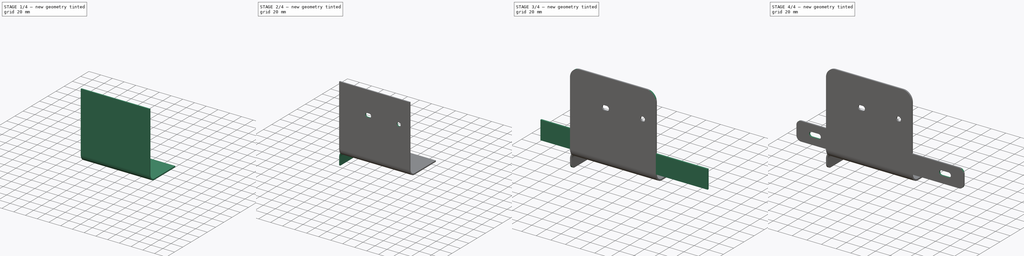
[diagram: build sequence overview — one tinted view per stage of 4, left to right]
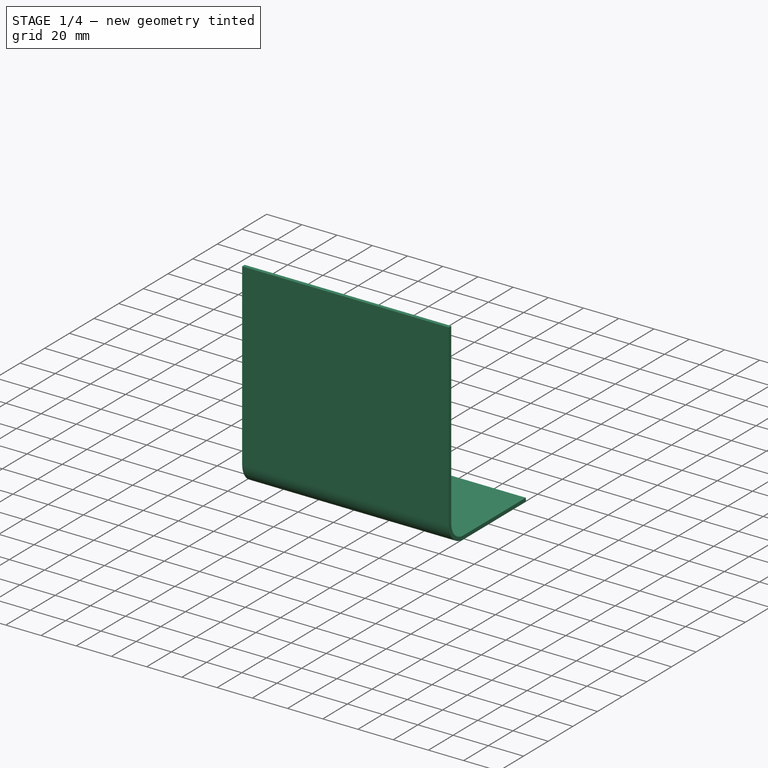
[diagram: stage 1 of 4 — iso view after this stage's code; geometry added in this stage tinted green]
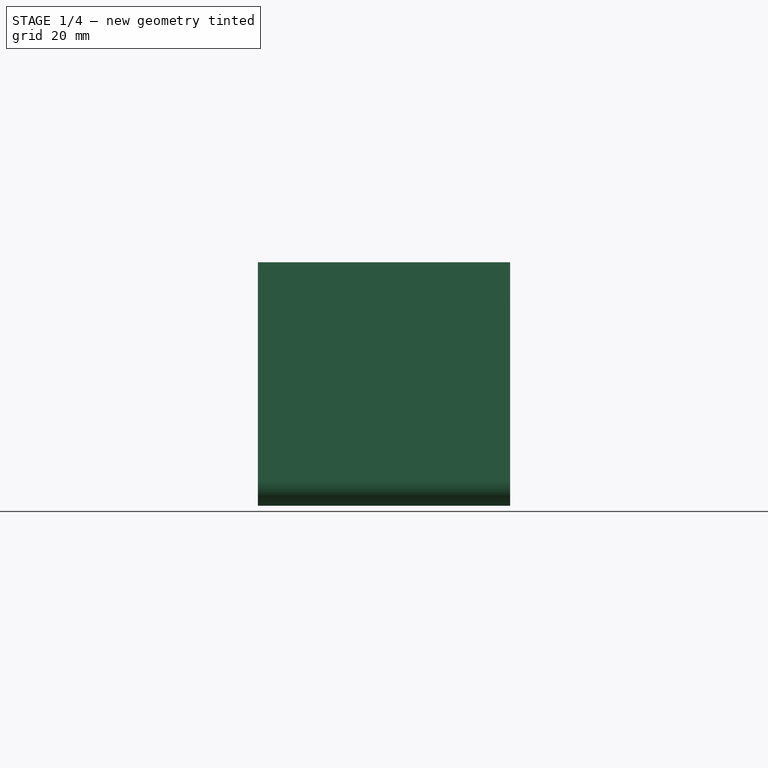
[diagram: stage 1 of 4 — front view after this stage's code; geometry added in this stage tinted green]
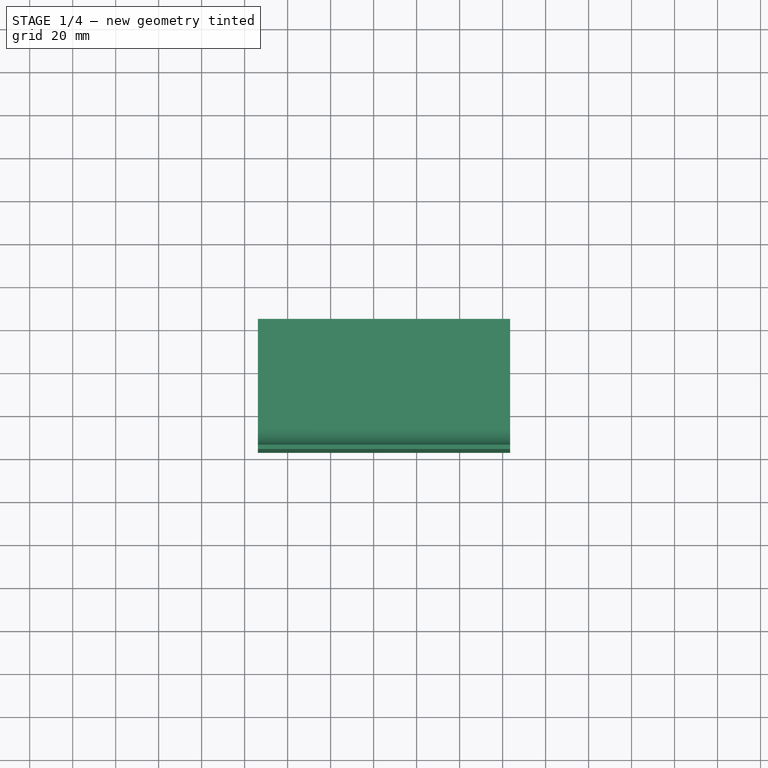
[diagram: stage 1 of 4 — top view after this stage's code; geometry added in this stage tinted green]
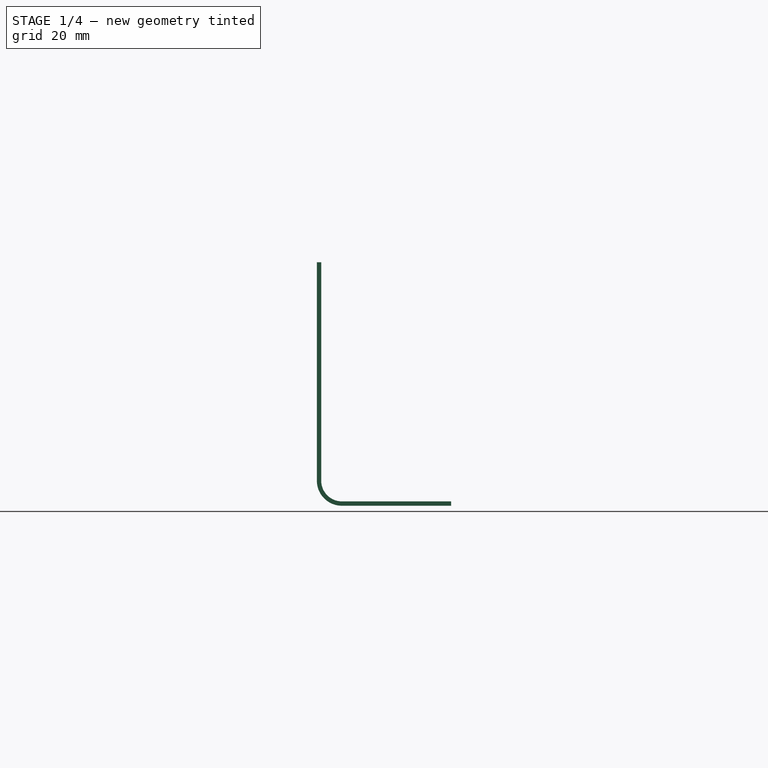
[diagram: stage 1 of 4 — right view after this stage's code; geometry added in this stage tinted green]
FCSTD DOCUMENT  (FreeCAD 1.0R39109 (Git))
Label: rear-light-bracket
License: All rights reserved
LicenseURL: https://en.wikipedia.org/wiki/All_rights_reserved
objects: Sketcher::SketchObject×5, PartDesign::Pocket×3, PartDesign::Fillet×3, PartDesign::Pad×2, PartDesign::FeaturePython×2, Spreadsheet::Sheet×1, PartDesign::Body×1
note: 39 computed .brp shape members not serialized (recipe doc carries the construction recipe); baked Part::Feature solids carry a one-line shape summary decoded from their .brp

FEATURE [Sketcher::SketchObject] Sketch
  ArcFitTolerance = 1e-06
  AttachmentSupport = -> [XY_Plane]
  FullyConstrained = false
  MakeInternals = false
  MapMode = 5
  expr: Constraints[10] = 5 in / 2
  expr: Constraints[9] = 5 in - <<Spreadsheet>>.bend_radius
  sketch-geometry (4):
    g0: LineSegment StartX=-53.848 StartY=25.4 StartZ=0 EndX=-53.848 EndY=-25.4 EndZ=0
    g1: LineSegment StartX=-53.848 StartY=-25.4 StartZ=0 EndX=63.5 EndY=-25.4 EndZ=0
    g2: LineSegment StartX=63.5 StartY=-25.4 StartZ=0 EndX=63.5 EndY=25.4 EndZ=0
    g3: LineSegment StartX=63.5 StartY=25.4 StartZ=0 EndX=-53.848 EndY=25.4 EndZ=0
  constraints (11):
    c: Coincident(g0,g1)
    c: Coincident(g1,g2)
    c: Coincident(g2,g3)
    c: Coincident(g3,g0)
    c: Vertical(g0)
    c: Vertical(g2)
    c: Horizontal(g1)
    c: Horizontal(g3)
    c: DistanceY(g2,g2) = 50.8
    c: DistanceX(g1,g1) = 117.348
    c: DistanceX(g-1,g2) = 63.5
FEATURE [PartDesign::Pad] Pad
  Direction = (0,0,1)
  Length = 2.032
  Length2 = 10
  Profile = -> Sketch
  ReferenceAxis = -> Sketch [N_Axis]
  Refine = true
  Suppressed = false
  Type = 0
FEATURE [PartDesign::FeaturePython] Bend  # WARN: FeaturePython — macro-defined, semantics opaque (R4)
  AutoMiter = true
  BaseFeature = -> Pad
  BendType = 0
  LengthList = [101.6]
  LengthSpec = 0
  NonperforationMaxLength = 5
  Perforate = false
  PerforationAngle = 0
  PerforationInitialLength = 5
  PerforationMaxLength = 5
  ReliefFactor = 0.7
  Suppressed = false
  UseReliefFactor = false
  angle = 90
  baseObject = -> Pad [Face2]
  bendAList = [90]
  extend1 = 0
  extend2 = 0
  gap1 = 0
  gap2 = 0
  invert = false
  kfactor = 0.48
  length = 101.6
  maxExtendDist = 5
  minGap = 0.2
  minReliefGap = 1
  miterangle1 = 0
  miterangle2 = 0
  offset = 0
  radius = 9.652
  reliefType = 0
  reliefd = 1
  reliefw = 0.8
  sketchflip = false
  sketchinvert = false
  unfold = false
  expr: kfactor = <<Spreadsheet>>.k_factor
  expr: radius = <<Spreadsheet>>.bend_radius
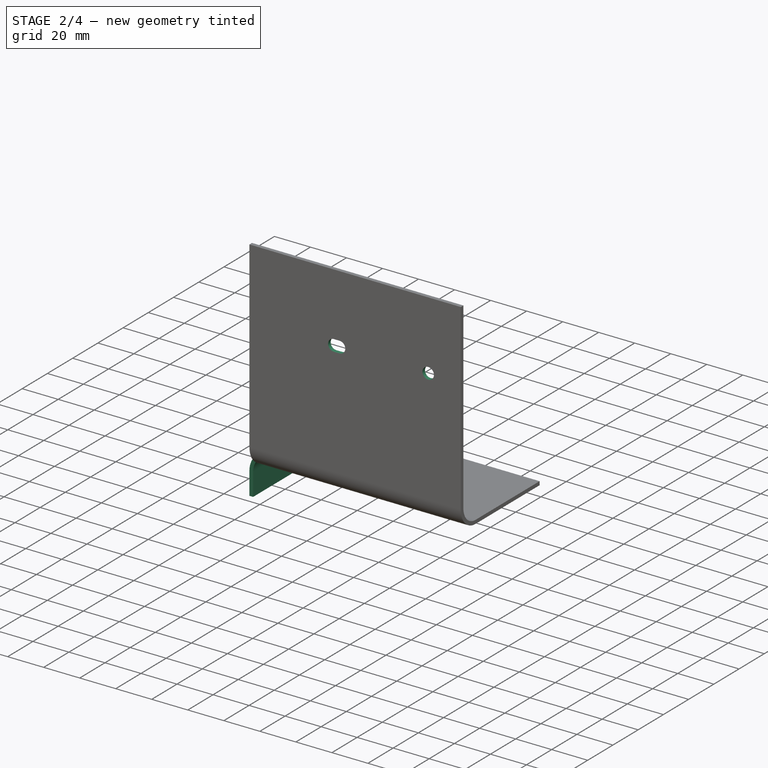
[diagram: stage 2 of 4 — iso view after this stage's code; geometry added in this stage tinted green]
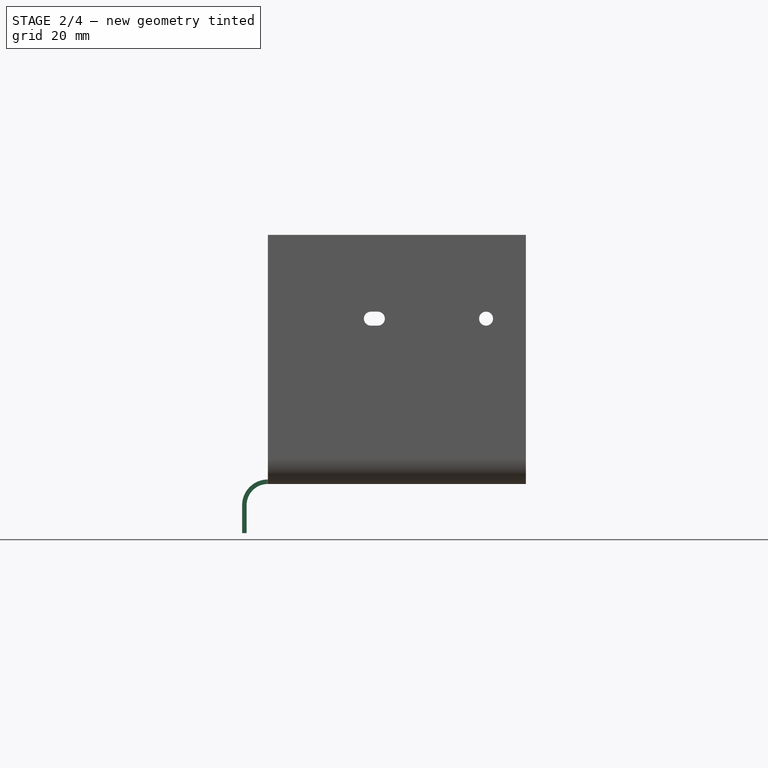
[diagram: stage 2 of 4 — front view after this stage's code; geometry added in this stage tinted green]
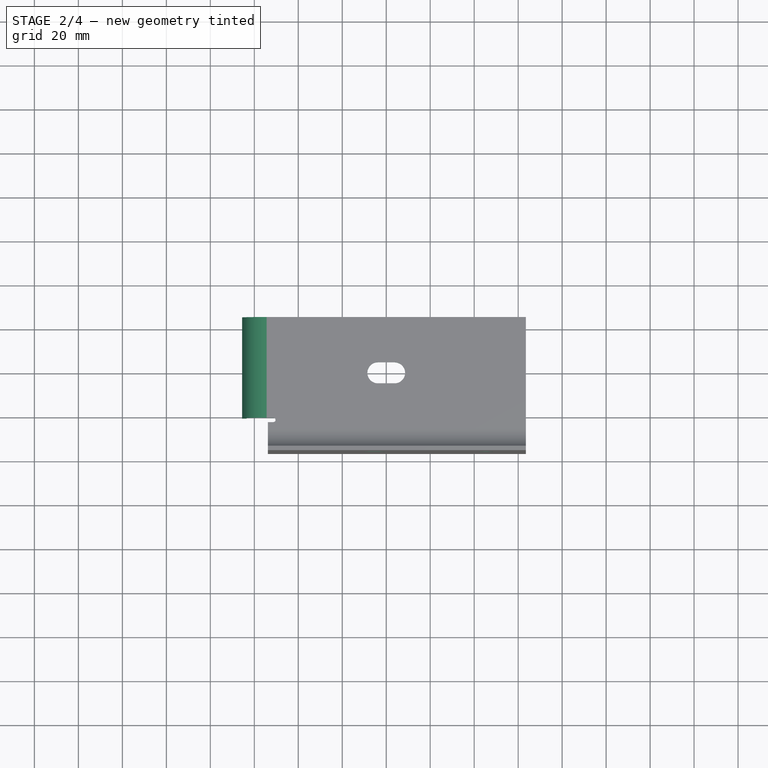
[diagram: stage 2 of 4 — top view after this stage's code; geometry added in this stage tinted green]
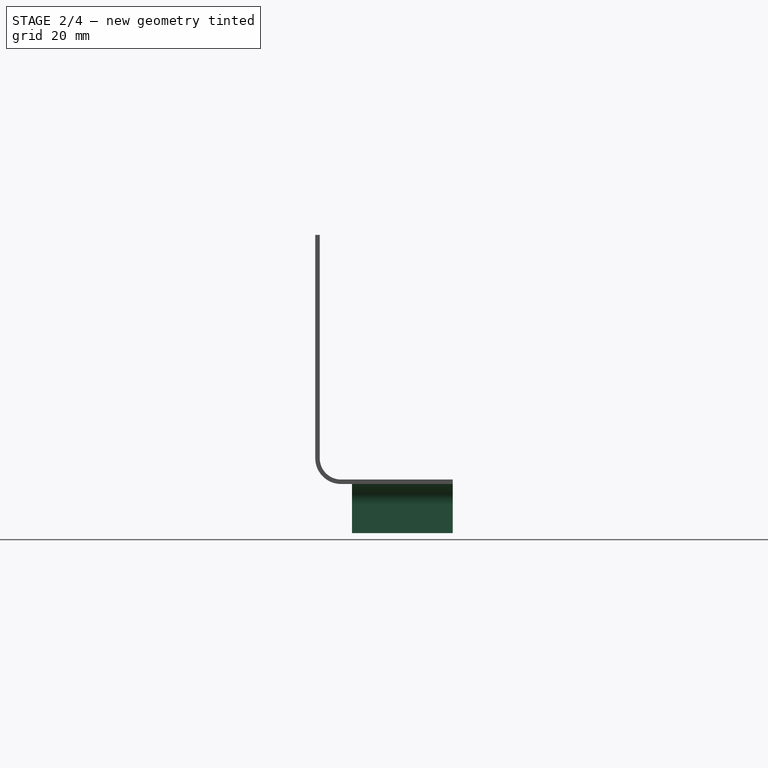
[diagram: stage 2 of 4 — right view after this stage's code; geometry added in this stage tinted green]
FEATURE [PartDesign::FeaturePython] Bend001  # WARN: FeaturePython — macro-defined, semantics opaque (R4)
  AutoMiter = true
  BaseFeature = -> Bend
  BendType = 0
  LengthList = [12.7]
  LengthSpec = 0
  NonperforationMaxLength = 5
  Perforate = false
  PerforationAngle = 0
  PerforationInitialLength = 5
  PerforationMaxLength = 5
  ReliefFactor = 0.7
  Suppressed = false
  UseReliefFactor = false
  angle = 90
  baseObject = -> Bend [Face1]
  bendAList = [90]
  extend1 = 0
  extend2 = 0
  gap1 = 0
  gap2 = 5
  invert = true
  kfactor = 0.48
  length = 12.7
  maxExtendDist = 5
  minGap = 0.2
  minReliefGap = 1
  miterangle1 = 0
  miterangle2 = 0
  offset = 0
  radius = 9.652
  reliefType = 1
  reliefd = 3.5052
  reliefw = 2
  sketchflip = false
  sketchinvert = false
  unfold = false
  expr: kfactor = <<Spreadsheet>>.k_factor
  expr: radius = <<Spreadsheet>>.bend_radius
  expr: reliefd = <<Spreadsheet>>.relief_depth
  expr: reliefw = 2
FEATURE [Sketcher::SketchObject] Sketch001
  ArcFitTolerance = 1e-06
  AttachmentSupport = -> [Bend001]
  ExternalGeometry = -> [Bend001]
  FullyConstrained = true
  MakeInternals = false
  MapMode = 5
  Placement = pos=(0,-37.084,-4.1e-15) rot=(1,0,0;1.5708rad)
  sketch-geometry (7):
    g0: ArcOfCircle CenterX=-6.9875 CenterY=75.184 CenterZ=0 NormalX=0 NormalY=0 NormalZ=1 AngleXU=0 Radius=3.175 StartAngle=1.5708 EndAngle=4.71239
    g1: ArcOfCircle CenterX=-3.8125 CenterY=75.184 CenterZ=0 NormalX=0 NormalY=0 NormalZ=1 AngleXU=0 Radius=3.175 StartAngle=4.71239 EndAngle=7.85398
    g2: LineSegment StartX=-6.9875 StartY=78.359 StartZ=0 EndX=-3.8125 EndY=78.359 EndZ=0
    g3: LineSegment StartX=-6.9875 StartY=72.009 StartZ=0 EndX=-3.8125 EndY=72.009 EndZ=0
    g4: GeomPoint X=-5.4 Y=75.184 Z=0
    g5: GeomPoint X=20 Y=75.184 Z=0
    g6: Circle CenterX=45.4 CenterY=75.184 CenterZ=0 NormalX=0 NormalY=0 NormalZ=1 AngleXU=0 Radius=3.175
  constraints (15):
    c: Tangent(g0,g2) = 1.5708
    c: Tangent(g0,g3) = -1.5708
    c: Tangent(g1,g2) = 1.5708
    c: Tangent(g1,g3) = -1.5708
    c: Equal(g0,g1)
    c: Horizontal(g0,g1)
    c: Symmetric(g0,g1,g4)
    c: DistanceX(g3,g3) = 3.175
    c: Distance(g5,g-2) = 20
    c: Symmetric(g4,g6,g5)
    c: Horizontal(g6,g4)
    c: Diameter(g6) = 6.35
    c: Equal(g6,g1)
    c: DistanceX(g4,g6) = 50.8
    c: Distance(g5,g-3) = 63.5
FEATURE [PartDesign::Pocket] Pocket
  BaseFeature = -> Bend001
  Direction = (0,1,-2e-16)
  Length = 5
  Length2 = 5
  Profile = -> Sketch001
  ReferenceAxis = -> Sketch001 [N_Axis]
  Refine = true
  Suppressed = false
  Type = 2
FEATURE [Sketcher::SketchObject] Sketch002
  ArcFitTolerance = 1e-06
  AttachmentSupport = -> [Pocket]
  FullyConstrained = true
  MakeInternals = false
  MapMode = 5
  Placement = pos=(0,0,2.032) rot=(0,0,1;0rad)
  sketch-geometry (4):
    g0: ArcOfCircle CenterX=-3.81 CenterY=0 CenterZ=0 NormalX=0 NormalY=0 NormalZ=1 AngleXU=0 Radius=4.7625 StartAngle=1.5708 EndAngle=4.71239
    g1: ArcOfCircle CenterX=3.81 CenterY=0 CenterZ=0 NormalX=0 NormalY=0 NormalZ=1 AngleXU=0 Radius=4.7625 StartAngle=4.71239 EndAngle=7.85398
    g2: LineSegment StartX=-3.81 StartY=4.7625 StartZ=0 EndX=3.81 EndY=4.7625 EndZ=0
    g3: LineSegment StartX=-3.81 StartY=-4.7625 StartZ=0 EndX=3.81 EndY=-4.7625 EndZ=0
  constraints (9):
    c: Tangent(g0,g2) = 1.5708
    c: Tangent(g0,g3) = -1.5708
    c: Tangent(g1,g2) = 1.5708
    c: Tangent(g1,g3) = -1.5708
    c: Equal(g0,g1)
    c: PointOnObject(g0,g-1)
    c: Radius(g1) = 4.7625
    c: DistanceX(g3,g3) = 7.62
    c: Symmetric(g0,g1,g-1)
FEATURE [PartDesign::Pocket] Pocket001
  BaseFeature = -> Pocket
  Direction = (0,0,-1)
  Length = 5
  Length2 = 5
  Profile = -> Sketch002
  ReferenceAxis = -> Sketch002 [N_Axis]
  Refine = true
  Suppressed = false
  Type = 2
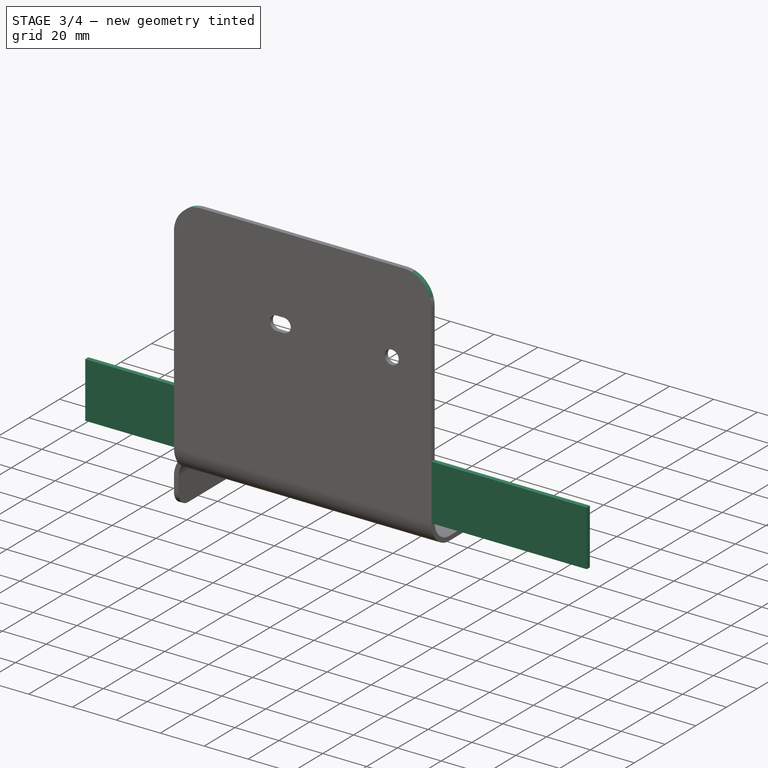
[diagram: stage 3 of 4 — iso view after this stage's code; geometry added in this stage tinted green]
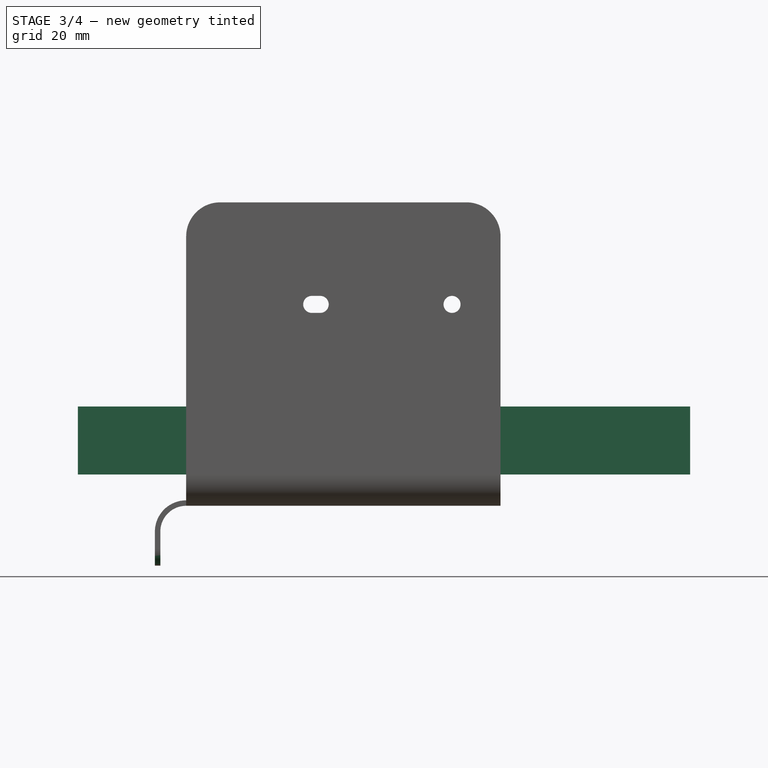
[diagram: stage 3 of 4 — front view after this stage's code; geometry added in this stage tinted green]
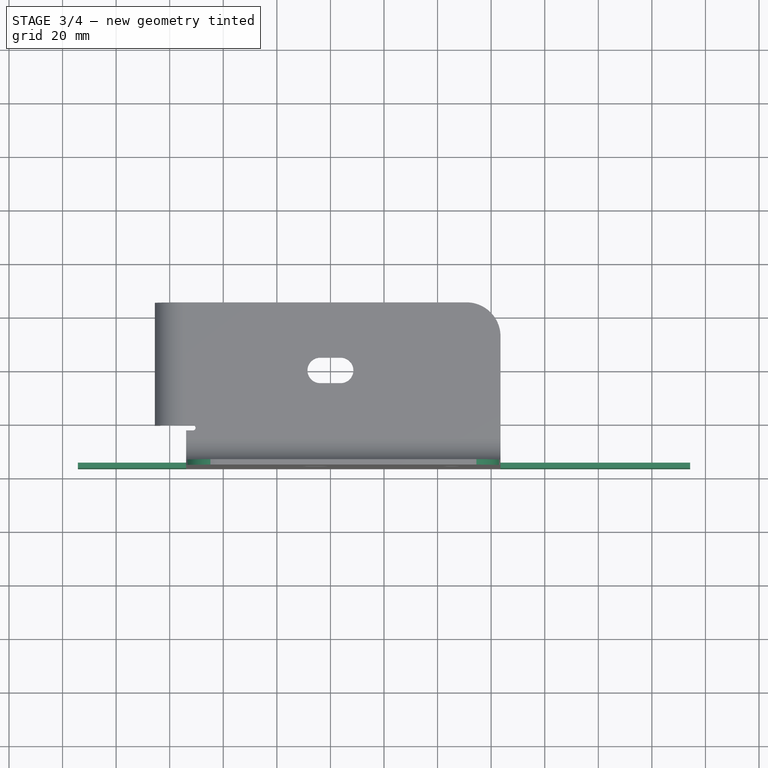
[diagram: stage 3 of 4 — top view after this stage's code; geometry added in this stage tinted green]
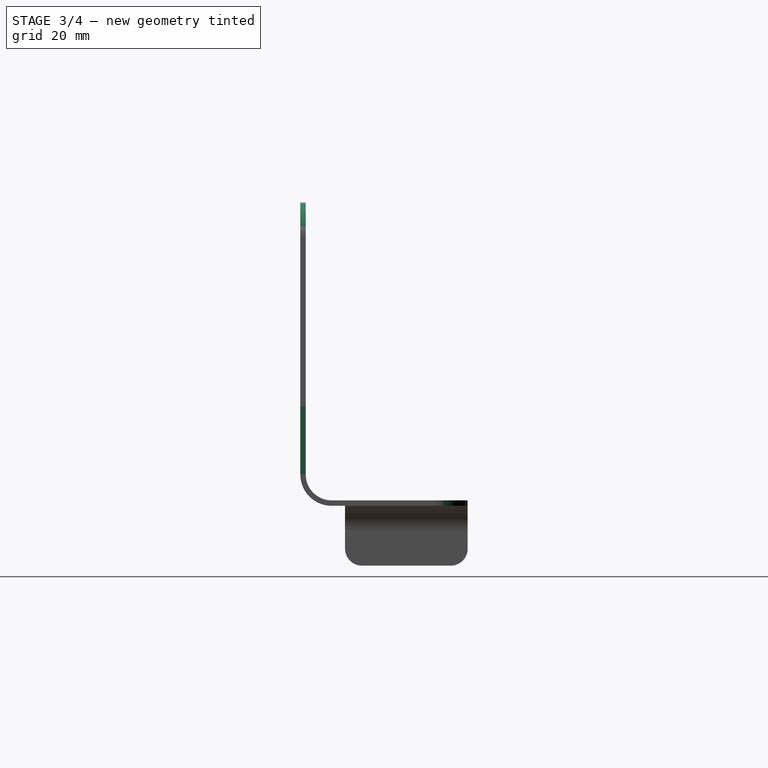
[diagram: stage 3 of 4 — right view after this stage's code; geometry added in this stage tinted green]
FEATURE [PartDesign::Fillet] Fillet
  Base = -> Pocket001 [Edge37,Edge23,Edge13]
  BaseFeature = -> Pocket001
  Radius = 12.7
  Refine = true
  SupportTransform = false
  Suppressed = false
  UseAllEdges = false
FEATURE [PartDesign::Fillet] Fillet001
  Base = -> Fillet [Edge35,Edge19]
  BaseFeature = -> Fillet
  Radius = 6.35
  Refine = true
  SupportTransform = false
  Suppressed = false
  UseAllEdges = false
FEATURE [Spreadsheet::Sheet] Spreadsheet
  cells = A1='sheet metal thickness; B1(sheet_metal_thickness)==0.08 in; A2='bend radius; B2(bend_radius)==0.38 in; A3='k factor ; B3(k_factor)=0.48; A4='relief depth; B4(relief_depth)==0.138 in
FEATURE [Sketcher::SketchObject] Sketch003
  ArcFitTolerance = 1e-06
  AttachmentSupport = -> [Fillet001]
  ExternalGeometry = -> [Fillet001]
  FullyConstrained = true
  MakeInternals = false
  MapMode = 5
  Placement = pos=(0,-37.084,-4.1e-15) rot=(1,0,0;1.5708rad)
  sketch-geometry (7):
    g0: LineSegment [constr] StartX=-5.4 StartY=75.184 StartZ=0 EndX=45.4 EndY=75.184 EndZ=0
    g1: LineSegment [constr] StartX=-5.4 StartY=75.184 StartZ=0 EndX=-5.4 EndY=72.009 EndZ=0
    g2: LineSegment StartX=-94.3 StartY=37.084 StartZ=0 EndX=-94.3 EndY=11.684 EndZ=0
    g3: LineSegment StartX=-94.3 StartY=11.684 StartZ=0 EndX=134.3 EndY=11.684 EndZ=0
    g4: LineSegment StartX=134.3 StartY=11.684 StartZ=0 EndX=134.3 EndY=37.084 EndZ=0
    g5: LineSegment StartX=134.3 StartY=37.084 StartZ=0 EndX=-94.3 EndY=37.084 EndZ=0
    g6: LineSegment [constr] StartX=20 StartY=75.184 StartZ=0 EndX=20 EndY=24.384 EndZ=0
  constraints (19):
    c: Coincident(g0,g-4)
    c: Horizontal(g0)
    c: Coincident(g1,g0)
    c: Vertical(g1)
    c: Symmetric(g-3,g-3,g1)
    c: Coincident(g2,g3)
    c: Coincident(g3,g4)
    c: Coincident(g4,g5)
    c: Coincident(g5,g2)
    c: Vertical(g2)
    c: Vertical(g4)
    c: Horizontal(g3)
    c: Horizontal(g5)
    c: DistanceY(g4,g4) = 25.4
    c: Distance(g5,g5) = 228.6
    c: Vertical(g6)
    c: Symmetric(g2,g4,g6)
    c: Symmetric(g0,g0,g6)
    c: PointOnObject(g-5,g3)
FEATURE [PartDesign::Pad] Pad001
  BaseFeature = -> Fillet001
  Direction = (0,-1,2e-16)
  Length = 2.032
  Length2 = 10
  Profile = -> Sketch003
  ReferenceAxis = -> Sketch003 [N_Axis]
  Refine = true
  Reversed = true
  Suppressed = false
  Type = 0
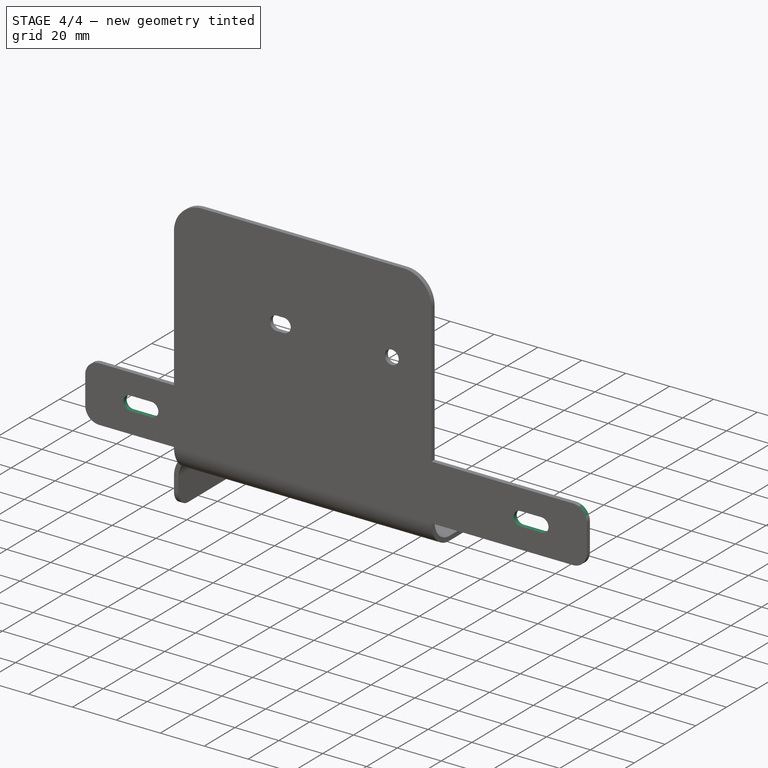
[diagram: stage 4 of 4 — iso view after this stage's code; geometry added in this stage tinted green]
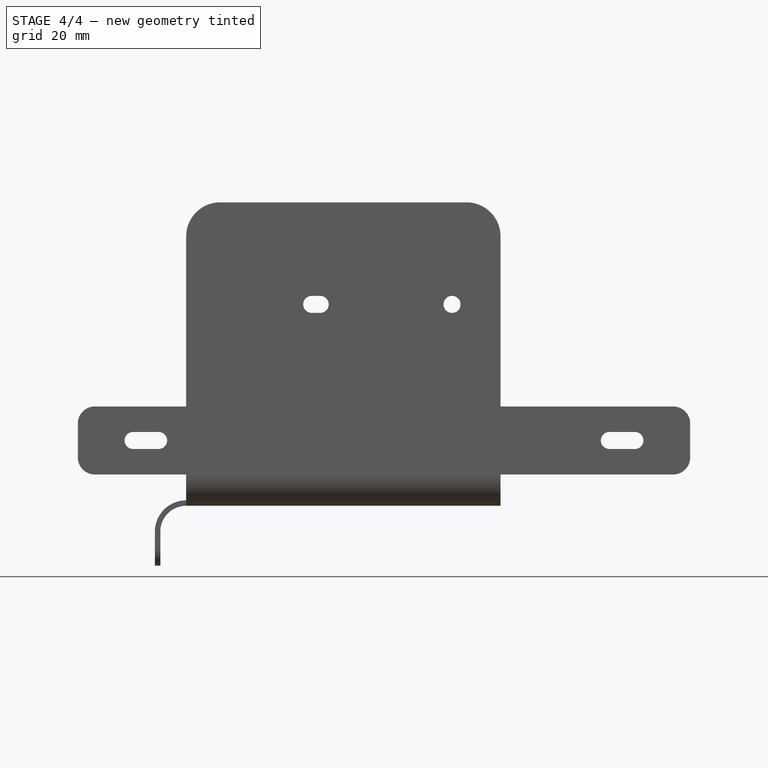
[diagram: stage 4 of 4 — front view after this stage's code; geometry added in this stage tinted green]
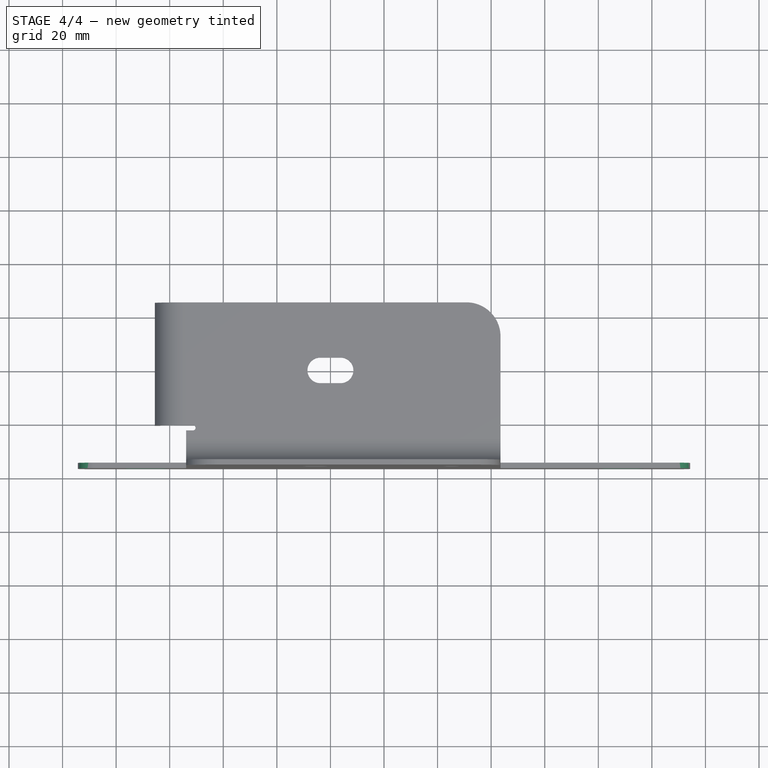
[diagram: stage 4 of 4 — top view after this stage's code; geometry added in this stage tinted green]
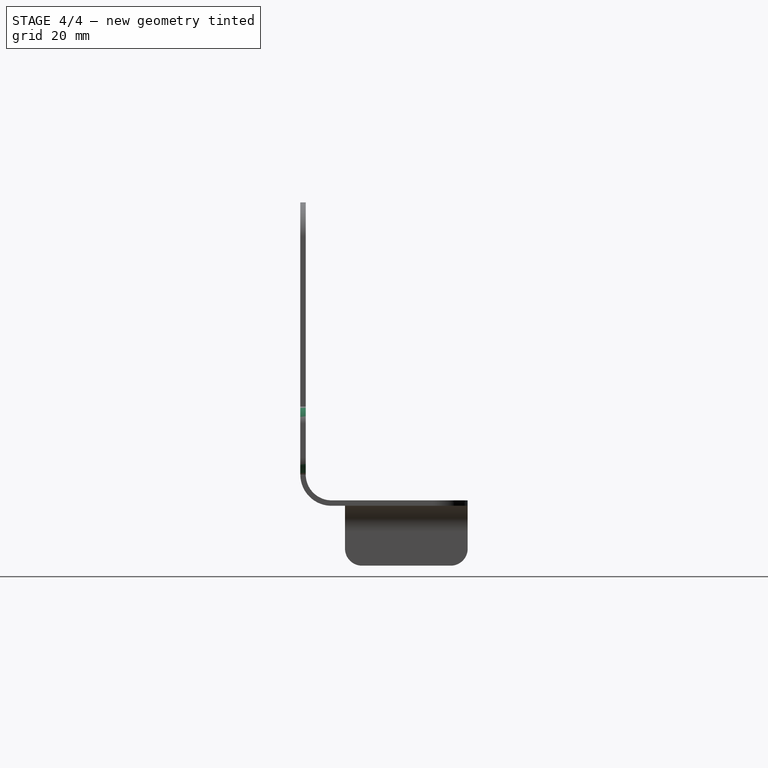
[diagram: stage 4 of 4 — right view after this stage's code; geometry added in this stage tinted green]
FEATURE [Sketcher::SketchObject] Sketch004
  ArcFitTolerance = 1e-06
  AttachmentSupport = -> [Pad001]
  ExternalGeometry = -> [Pad001]
  FullyConstrained = true
  MakeInternals = false
  MapMode = 5
  Placement = pos=(0,-37.084,0) rot=(1,0,0;1.5708rad)
  sketch-geometry (10):
    g0: ArcOfCircle CenterX=-73.6625 CenterY=24.384 CenterZ=0 NormalX=0 NormalY=0 NormalZ=1 AngleXU=0 Radius=3.175 StartAngle=1.5708 EndAngle=4.71239
    g1: ArcOfCircle CenterX=-64.1375 CenterY=24.384 CenterZ=0 NormalX=0 NormalY=0 NormalZ=1 AngleXU=0 Radius=3.175 StartAngle=4.71239 EndAngle=7.85398
    g2: LineSegment StartX=-73.6625 StartY=27.559 StartZ=0 EndX=-64.1375 EndY=27.559 EndZ=0
    g3: LineSegment StartX=-73.6625 StartY=21.209 StartZ=0 EndX=-64.1375 EndY=21.209 EndZ=0
    g4: ArcOfCircle CenterX=104.137 CenterY=24.384 CenterZ=0 NormalX=0 NormalY=0 NormalZ=1 AngleXU=0 Radius=3.175 StartAngle=1.5708 EndAngle=4.71239
    g5: ArcOfCircle CenterX=113.662 CenterY=24.384 CenterZ=0 NormalX=0 NormalY=0 NormalZ=1 AngleXU=0 Radius=3.175 StartAngle=4.71239 EndAngle=7.85398
    g6: LineSegment StartX=104.137 StartY=27.559 StartZ=0 EndX=113.662 EndY=27.559 EndZ=0
    g7: LineSegment StartX=104.137 StartY=21.209 StartZ=0 EndX=113.662 EndY=21.209 EndZ=0
    g8: LineSegment [constr] StartX=-68.9 StartY=24.384 StartZ=0 EndX=108.9 EndY=24.384 EndZ=0
    g9: GeomPoint [constr] X=20 Y=24.384 Z=0
  constraints (22):
    c: Tangent(g0,g2) = 1.5708
    c: Tangent(g0,g3) = -1.5708
    c: Tangent(g1,g2) = 1.5708
    c: Tangent(g1,g3) = -1.5708
    c: Equal(g0,g1)
    c: Horizontal(g2)
    c: Tangent(g4,g6) = 1.5708
    c: Tangent(g4,g7) = -1.5708
    c: Tangent(g5,g6) = 1.5708
    c: Tangent(g5,g7) = -1.5708
    c: Equal(g4,g5)
    c: Horizontal(g7)
    c: Equal(g1,g5)
    c: Equal(g2,g6)
    c: Radius(g5) = 3.175
    c: Distance(g7,g7) = 9.525
    c: Horizontal(g4,g1)
    c: Symmetric(g0,g1,g8)
    c: Symmetric(g4,g5,g8)
    c: Symmetric(g8,g8,g9)
    c: Symmetric(g-3,g-4,g9)
    c: DistanceX(g8,g8) = 177.8
FEATURE [PartDesign::Pocket] Pocket002
  BaseFeature = -> Pad001
  Direction = (0,1,-2e-16)
  Length = 5
  Length2 = 5
  Profile = -> Sketch004
  ReferenceAxis = -> Sketch004 [N_Axis]
  Refine = true
  Suppressed = false
  Type = 0
FEATURE [PartDesign::Fillet] Fillet002
  Base = -> Pocket002 [Edge115,Edge91,Edge114,Edge65]
  BaseFeature = -> Pocket002
  Radius = 6.35
  Refine = true
  SupportTransform = false
  Suppressed = false
  UseAllEdges = false
FEATURE [PartDesign::Body] Body
  AllowCompound = false
  Group = -> [Sketch,Pad,Bend,Bend001,Sketch001,Pocket,Sketch002,Pocket001,Fillet,Fillet001,Sketch003,Pad001,Sketch004,Pocket002,Fillet002]
  Origin = -> Origin
  Tip = -> Fillet002
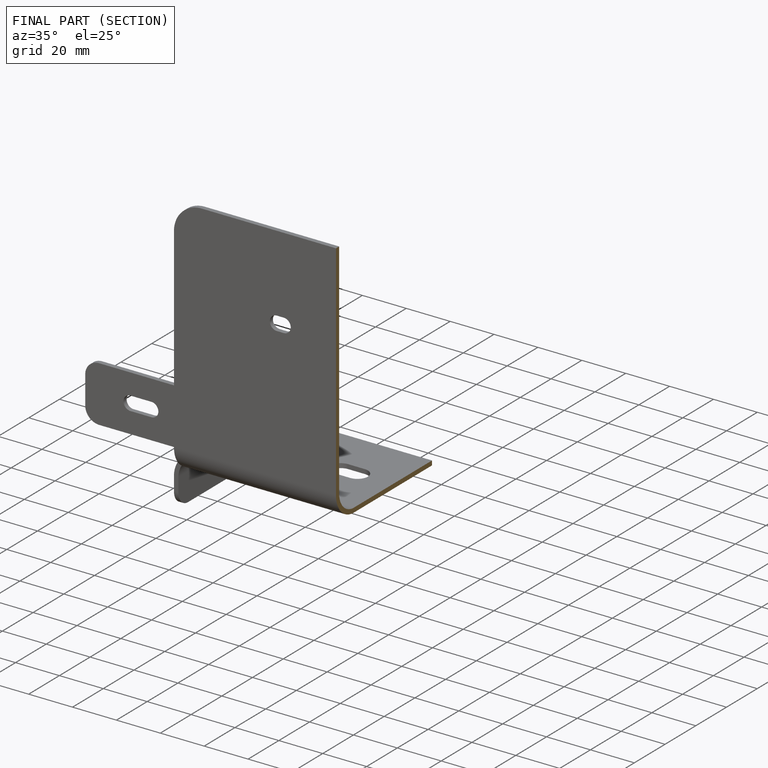
[diagram: finished part — half-section view (interior)]
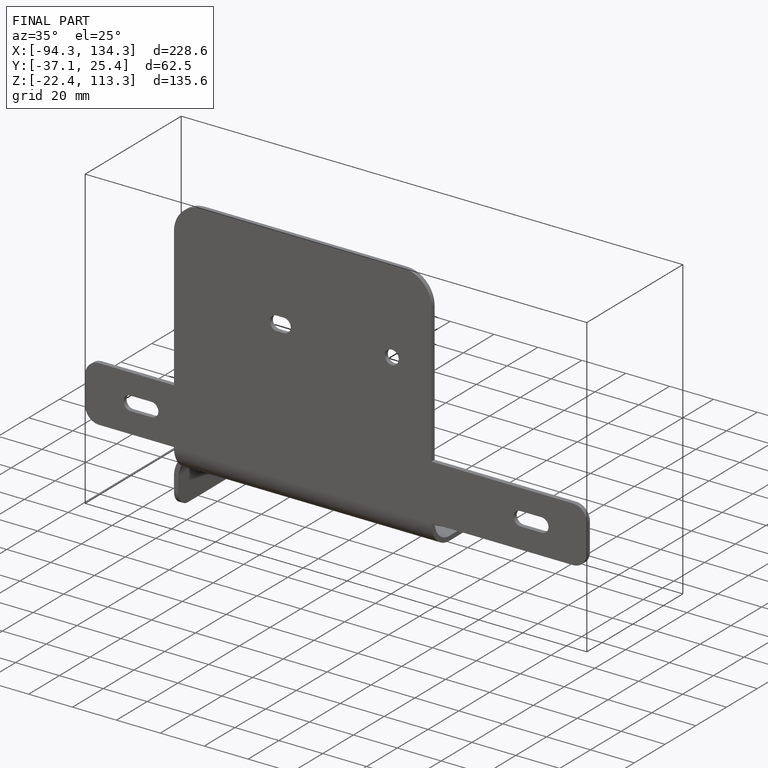
[diagram: finished part — iso view with bounding-box wireframe]
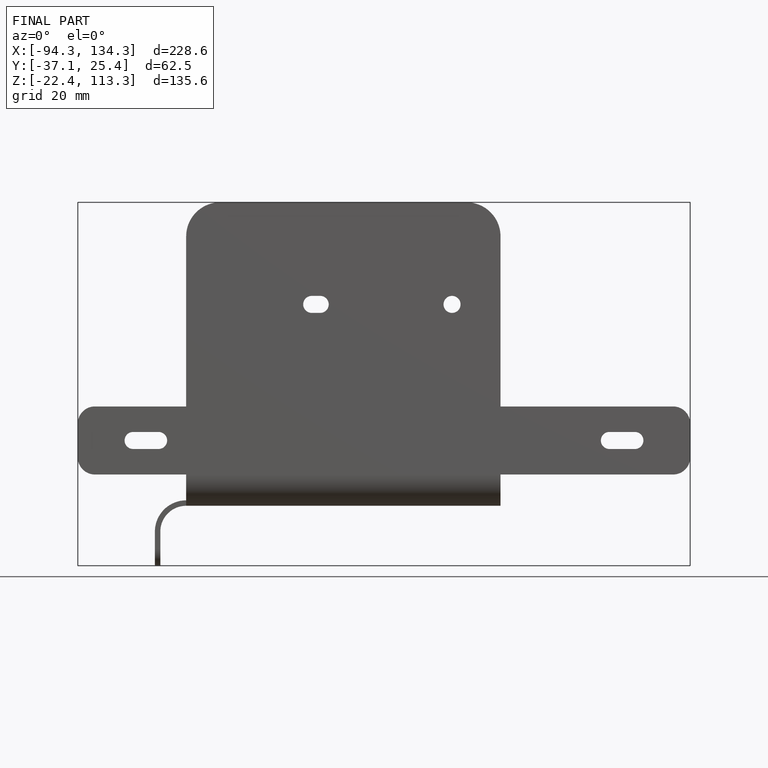
[diagram: finished part — front view with bounding-box wireframe]
